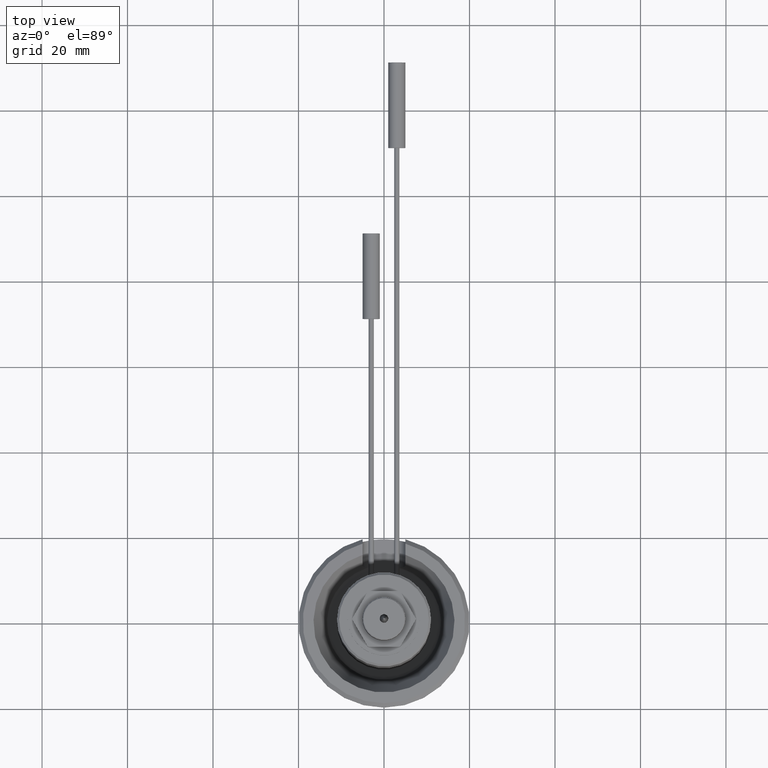
[diagram: clean part render]
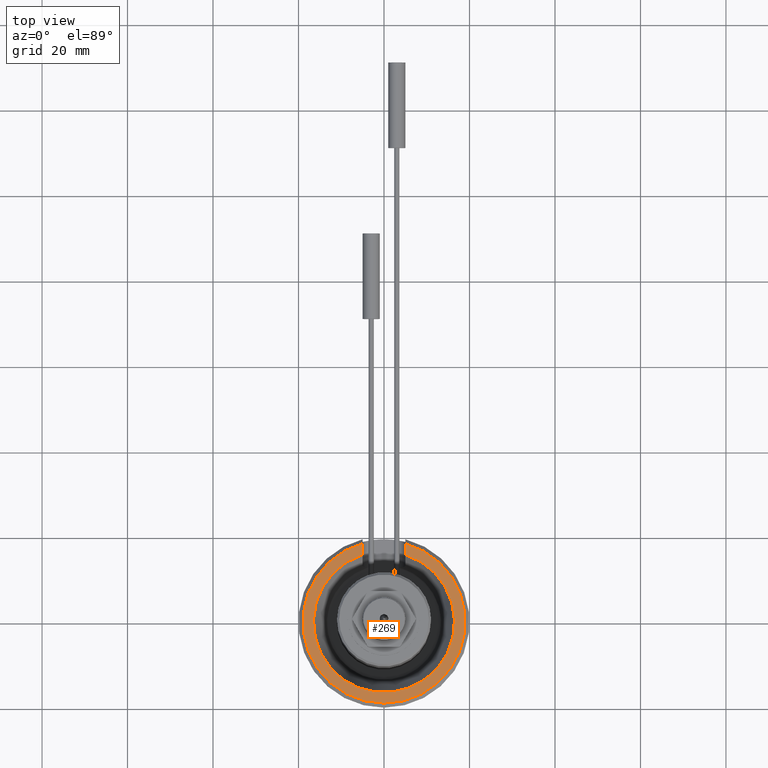
[diagram: same view with one face highlighted and labeled with its STEP entity id]
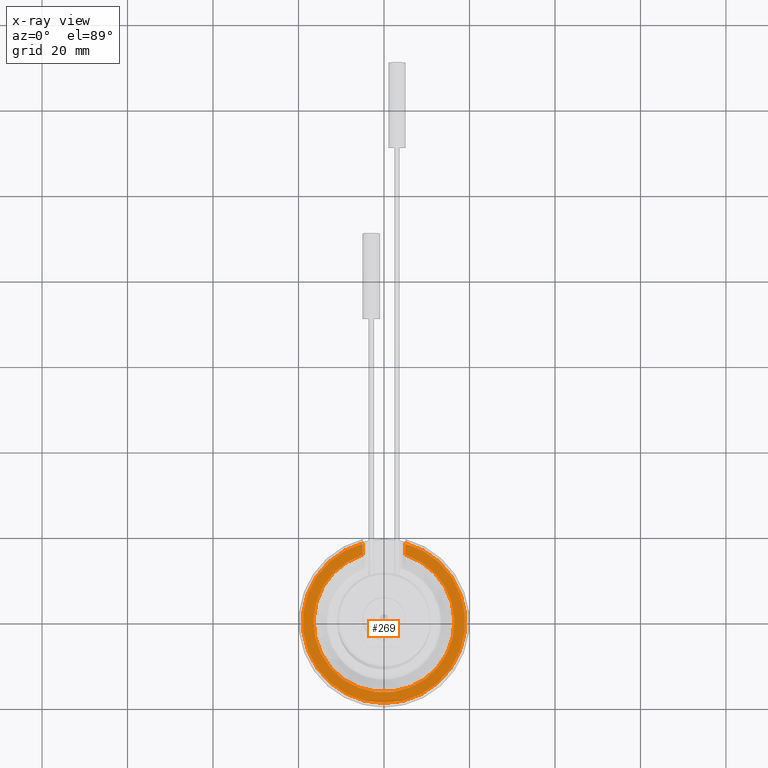
[diagram: x-ray of the same camera — body ghosted, the highlighted face saturated]
A machine part, top view. The second image highlights one B-rep face of the part: STEP entity #269.
The next image is the same camera in x-ray: the body ghosted, the highlighted face saturated — about 0% of this face is hidden behind the body in this view.
In plain terms, the highlighted planar face has unit normal (0, 0, -1).
Its self-contained STEP definition (entity closure, byte-faithful):
#77=PLANE('',#1215);
#130=LINE('',#2216,#174);
#132=LINE('',#2229,#176);
#174=VECTOR('',#1496,1.);
#176=VECTOR('',#1500,1.);
#205=FACE_OUTER_BOUND('',#479,.T.);
#269=ADVANCED_FACE('',(#205),#77,.F.);
#479=EDGE_LOOP('',(#706,#707,#708,#709));
#706=ORIENTED_EDGE('',*,*,#1035,.T.);
#707=ORIENTED_EDGE('',*,*,#1036,.T.);
#708=ORIENTED_EDGE('',*,*,#1031,.F.);
#709=ORIENTED_EDGE('',*,*,#979,.F.);
#856=VERTEX_POINT('',#2031);
#858=VERTEX_POINT('',#2034);
#895=VERTEX_POINT('',#2217);
#896=VERTEX_POINT('',#2228);
#979=EDGE_CURVE('',#856,#858,#1081,.T.);
#1031=EDGE_CURVE('',#858,#895,#130,.T.);
#1035=EDGE_CURVE('',#856,#896,#132,.T.);
#1036=EDGE_CURVE('',#896,#895,#1103,.T.);
#1081=CIRCLE('',#1171,16.4996646888082);
#1103=CIRCLE('',#1214,19.);
#1171=AXIS2_PLACEMENT_3D('',#2033,#1397,#1398);
#1214=AXIS2_PLACEMENT_3D('',#2231,#1503,#1504);
#1215=AXIS2_PLACEMENT_3D('',#2232,#1505,#1506);
#1397=DIRECTION('',(0.,0.,1.));
#1398=DIRECTION('',(1.,0.,0.));
#1496=DIRECTION('',(0.,1.,0.));
#1500=DIRECTION('',(0.,1.,0.));
#1503=DIRECTION('',(0.,0.,1.));
#1504=DIRECTION('',(-1.,0.,0.));
#1505=DIRECTION('',(0.,0.,-1.));
#1506=DIRECTION('',(-1.,0.,0.));
#2031=CARTESIAN_POINT('',(-5.,15.7238333380606,25.));
#2033=CARTESIAN_POINT('',(0.,0.,25.));
#2034=CARTESIAN_POINT('',(5.,15.7238333380606,25.));
#2216=CARTESIAN_POINT('',(5.,11.,25.));
#2217=CARTESIAN_POINT('',(5.,18.3303027798234,25.));
#2228=CARTESIAN_POINT('',(-5.,18.3303027798234,25.));
#2229=CARTESIAN_POINT('',(-5.,11.,25.));
#2231=CARTESIAN_POINT('',(0.,0.,25.));
#2232=CARTESIAN_POINT('',(-20.,0.,25.));